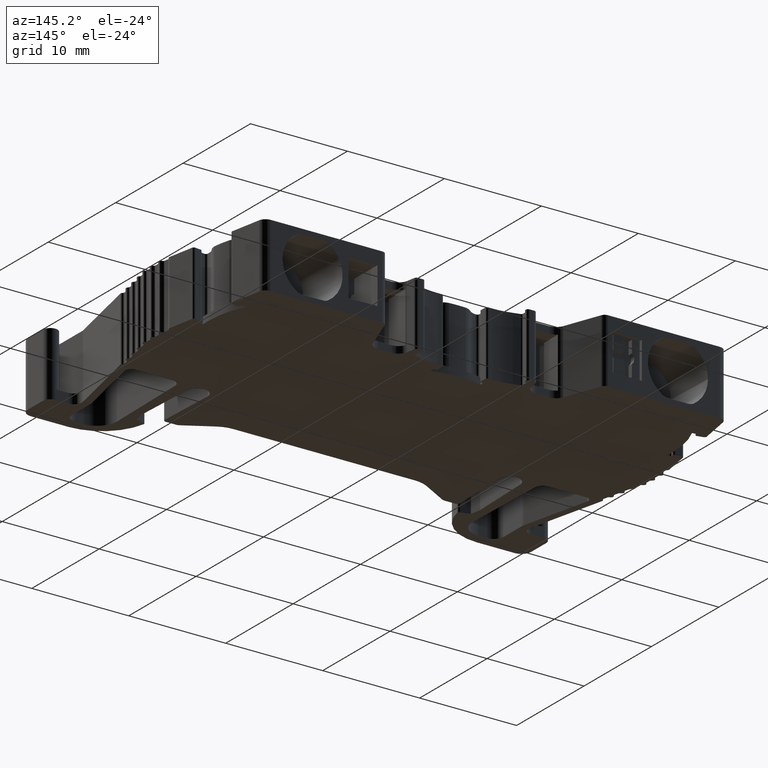
[diagram: clean part render]
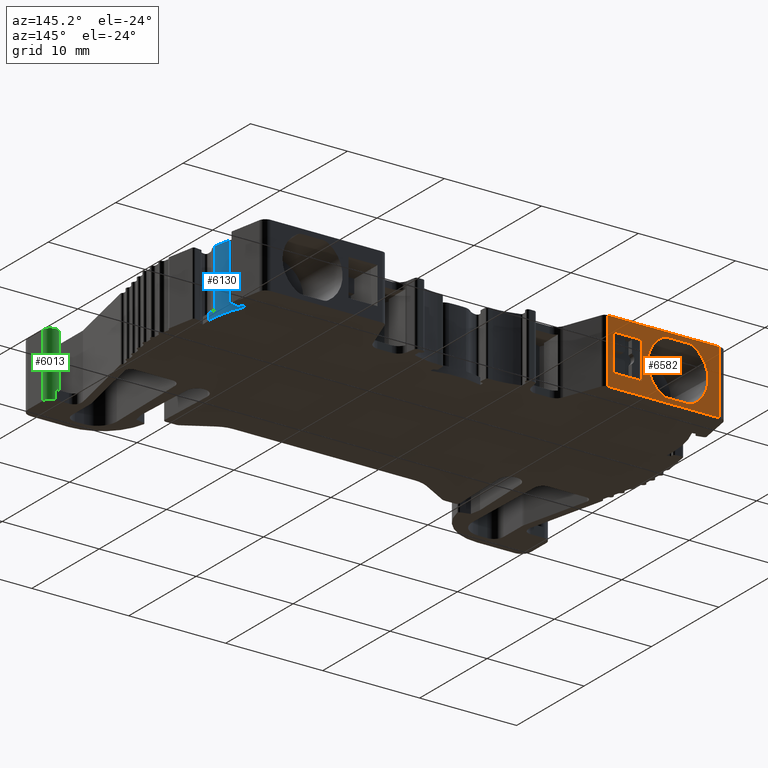
[diagram: same view with three faces highlighted in distinct colors, each labeled with its STEP entity id]
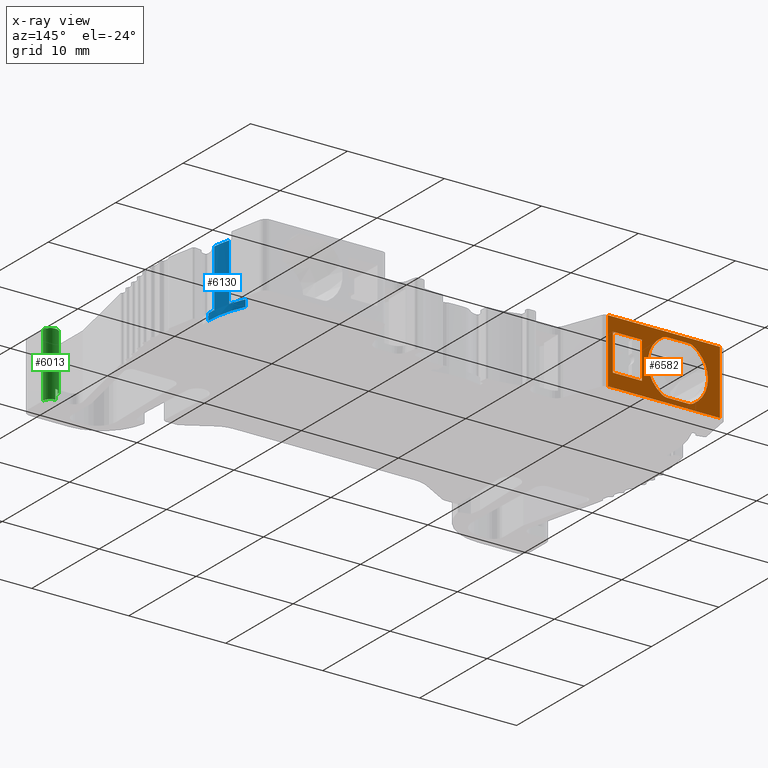
[diagram: x-ray of the same camera — body ghosted, the three highlighted faces saturated]
A machine part, auxiliary view with three faces highlighted in distinct colors.
The next image is the same camera in x-ray (body ghosted, the three faces saturated) — at least one of them is partly hidden behind the body in this view.
Their STEP definitions:

[orange] entity #6582 — the highlighted planar face has unit normal (-0, 1, 0).
#235 = AXIS2_PLACEMENT_3D ( 'NONE', #8721, #8742, #8756 ) ;
#297 = AXIS2_PLACEMENT_3D ( 'NONE', #818, #800, #825 ) ;
#322 = CIRCLE ( 'NONE', #297, 3.101458967779340300 ) ;
#800 = DIRECTION ( 'NONE',  ( 0.0000000000000000000, -1.000000000000000000, 0.0000000000000000000 ) ) ;
#818 = CARTESIAN_POINT ( 'NONE',  ( 1915.531156188674900, 520.6674757026430600, 6.682518055096240200E-015 ) ) ;
#825 = DIRECTION ( 'NONE',  ( 0.0000000000000000000, 0.0000000000000000000, -1.000000000000000000 ) ) ;
#3540 = AXIS2_PLACEMENT_3D ( 'NONE', #12206, #12203, #12193 ) ;
#3541 = VECTOR ( 'NONE', #12190, 1000.000000000000000 ) ;
#3545 = VECTOR ( 'NONE', #11076, 1000.000000000000000 ) ;
#3553 = VECTOR ( 'NONE', #10986, 1000.000000000000000 ) ;
#3554 = VECTOR ( 'NONE', #11033, 1000.000000000000000 ) ;
#3578 = VECTOR ( 'NONE', #11094, 1000.000000000000000 ) ;
#3583 = VECTOR ( 'NONE', #11093, 1000.000000000000000 ) ;
#3586 = CIRCLE ( 'NONE', #3540, 3.101458967779340300 ) ;
#3631 = AXIS2_PLACEMENT_3D ( 'NONE', #11309, #11321, #11332 ) ;
#3643 = CIRCLE ( 'NONE', #3631, 3.101458967779340300 ) ;
#3663 = VECTOR ( 'NONE', #11385, 1000.000000000000000 ) ;
#3685 = VECTOR ( 'NONE', #11381, 1000.000000000000000 ) ;
#3707 = VECTOR ( 'NONE', #11340, 1000.000000000000000 ) ;
#4540 = EDGE_LOOP ( 'NONE', ( #10365, #10346, #10348, #10366, #10328, #10321, #10333, #10341, #10342 ) ) ;
#4609 = EDGE_LOOP ( 'NONE', ( #10343, #10322, #10347, #10334 ) ) ;
#4655 = EDGE_LOOP ( 'NONE', ( #10356, #10316, #10351, #10349 ) ) ;
#4903 = EDGE_CURVE ( 'NONE', #10593, #10605, #12140, .T. ) ;
#4922 = EDGE_CURVE ( 'NONE', #10776, #10556, #3586, .T. ) ;
#4924 = EDGE_CURVE ( 'NONE', #10583, #10575, #12176, .T. ) ;
#4930 = EDGE_CURVE ( 'NONE', #10610, #10563, #10992, .T. ) ;
#4964 = EDGE_CURVE ( 'NONE', #10562, #10605, #11040, .T. ) ;
#4983 = EDGE_CURVE ( 'NONE', #10556, #10595, #9624, .T. ) ;
#4987 = EDGE_CURVE ( 'NONE', #10595, #10571, #11057, .T. ) ;
#4998 = EDGE_CURVE ( 'NONE', #10562, #10555, #11090, .T. ) ;
#5000 = EDGE_CURVE ( 'NONE', #10583, #10610, #11092, .T. ) ;
#5005 = EDGE_CURVE ( 'NONE', #10598, #10792, #9627, .T. ) ;
#5054 = EDGE_CURVE ( 'NONE', #10584, #10625, #9730, .T. ) ;
#5056 = EDGE_CURVE ( 'NONE', #10571, #10606, #9733, .T. ) ;
#5125 = EDGE_CURVE ( 'NONE', #10606, #10584, #3643, .T. ) ;
#5132 = EDGE_CURVE ( 'NONE', #10575, #10563, #11322, .T. ) ;
#5141 = EDGE_CURVE ( 'NONE', #10555, #10593, #11349, .T. ) ;
#5150 = EDGE_CURVE ( 'NONE', #10625, #10598, #11380, .T. ) ;
#6582 = ADVANCED_FACE ( 'NONE', ( #8718, #8729, #8716 ), #8733, .T. ) ;
#6676 = EDGE_CURVE ( 'NONE', #10792, #10776, #322, .T. ) ;
#7779 = CARTESIAN_POINT ( 'NONE',  ( 1922.732209476075000, 520.6674757026415800, -3.299999999999999800 ) ) ;
#7788 = CARTESIAN_POINT ( 'NONE',  ( 1913.929874615439800, 520.6674757026430600, -2.656114653405434700 ) ) ;
#7798 = CARTESIAN_POINT ( 'NONE',  ( 1922.231156188675200, 520.6674757026430600, 1.899999999999999900 ) ) ;
#7801 = CARTESIAN_POINT ( 'NONE',  ( 1922.231156188675200, 520.6674757026430600, -1.899999999999999900 ) ) ;
#7836 = CARTESIAN_POINT ( 'NONE',  ( 1919.247152070025100, 520.6674757026430600, -1.899999999999999900 ) ) ;
#7849 = CARTESIAN_POINT ( 'NONE',  ( 1916.614986978999900, 520.6674757026430600, 2.799999999999999800 ) ) ;
#7854 = CARTESIAN_POINT ( 'NONE',  ( 1911.205100952650100, 520.6674757026435100, 3.299999999999997200 ) ) ;
#7868 = CARTESIAN_POINT ( 'NONE',  ( 1919.247152070025100, 520.6674757026430600, 1.899999999999999900 ) ) ;
#7871 = CARTESIAN_POINT ( 'NONE',  ( 1914.447325398344900, 520.6674757026430600, 2.799999999999999800 ) ) ;
#7878 = CARTESIAN_POINT ( 'NONE',  ( 1917.132437761910100, 520.6674757026430600, -2.656114653405434700 ) ) ;
#7886 = CARTESIAN_POINT ( 'NONE',  ( 1916.614986978999900, 520.6674757026430600, -2.799999999999999800 ) ) ;
#7888 = CARTESIAN_POINT ( 'NONE',  ( 1911.205100952650100, 520.6674757026430600, -3.299999999999999800 ) ) ;
#7891 = CARTESIAN_POINT ( 'NONE',  ( 1922.732209476075000, 520.6674757026430600, 3.299999999999997200 ) ) ;
#7896 = CARTESIAN_POINT ( 'NONE',  ( 1914.447325398344900, 520.6674757026430600, -2.799999999999999800 ) ) ;
#7897 = CARTESIAN_POINT ( 'NONE',  ( 1917.132437761910100, 520.6674757026430600, 2.656114653405444900 ) ) ;
#8076 = CARTESIAN_POINT ( 'NONE',  ( 1913.929874615439800, 520.6674757026430600, 2.656114653405444900 ) ) ;
#8088 = CARTESIAN_POINT ( 'NONE',  ( 1912.429697220895600, 520.6674757026430600, 0.0000000000000000000 ) ) ;
#8387 = VECTOR ( 'NONE', #12142, 1000.000000000000000 ) ;
#8716 = FACE_BOUND ( 'NONE', #4609, .T. ) ;
#8718 = FACE_OUTER_BOUND ( 'NONE', #4655, .T. ) ;
#8721 = CARTESIAN_POINT ( 'NONE',  ( 1922.538986984438900, 520.6674757026430600, 64.80301117275325900 ) ) ;
#8729 = FACE_BOUND ( 'NONE', #4540, .T. ) ;
#8733 = PLANE ( 'NONE',  #235 ) ;
#8742 = DIRECTION ( 'NONE',  ( -0.0000000000000000000, 1.000000000000000000, 0.0000000000000000000 ) ) ;
#8756 = DIRECTION ( 'NONE',  ( 0.0000000000000000000, -0.0000000000000000000, 1.000000000000000000 ) ) ;
#9624 = B_SPLINE_CURVE_WITH_KNOTS ( 'NONE', 3,
 ( #11111, #11085, #11067, #11086 ),
 .UNSPECIFIED., .F., .F.,
 ( 4, 4 ),
 ( 3.903127820947816000E-018, 0.0005399221438289210800 ),
 .UNSPECIFIED. ) ;
#9627 = B_SPLINE_CURVE_WITH_KNOTS ( 'NONE', 3,
 ( #11127, #11165, #11149, #11128 ),
 .UNSPECIFIED., .F., .F.,
 ( 4, 4 ),
 ( 0.0000000000000000000, 0.0005399201660415871000 ),
 .UNSPECIFIED. ) ;
#9730 = B_SPLINE_CURVE_WITH_KNOTS ( 'NONE', 3,
 ( #11181, #11188, #11189, #11202 ),
 .UNSPECIFIED., .F., .F.,
 ( 4, 4 ),
 ( 2.602085213965210600E-018, 0.0005399221438340090200 ),
 .UNSPECIFIED. ) ;
#9733 = B_SPLINE_CURVE_WITH_KNOTS ( 'NONE', 3,
 ( #11195, #11179, #11201, #11194 ),
 .UNSPECIFIED., .F., .F.,
 ( 4, 4 ),
 ( 0.0000000000000000000, 0.0005399201660460113000 ),
 .UNSPECIFIED. ) ;
#10316 = ORIENTED_EDGE ( 'NONE', *, *, #5132, .F. ) ;
#10321 = ORIENTED_EDGE ( 'NONE', *, *, #5125, .T. ) ;
#10322 = ORIENTED_EDGE ( 'NONE', *, *, #4998, .T. ) ;
#10328 = ORIENTED_EDGE ( 'NONE', *, *, #5056, .T. ) ;
#10333 = ORIENTED_EDGE ( 'NONE', *, *, #5054, .T. ) ;
#10334 = ORIENTED_EDGE ( 'NONE', *, *, #4903, .T. ) ;
#10341 = ORIENTED_EDGE ( 'NONE', *, *, #5150, .T. ) ;
#10342 = ORIENTED_EDGE ( 'NONE', *, *, #5005, .T. ) ;
#10343 = ORIENTED_EDGE ( 'NONE', *, *, #4964, .F. ) ;
#10346 = ORIENTED_EDGE ( 'NONE', *, *, #4922, .T. ) ;
#10347 = ORIENTED_EDGE ( 'NONE', *, *, #5141, .T. ) ;
#10348 = ORIENTED_EDGE ( 'NONE', *, *, #4983, .T. ) ;
#10349 = ORIENTED_EDGE ( 'NONE', *, *, #5000, .T. ) ;
#10351 = ORIENTED_EDGE ( 'NONE', *, *, #4924, .F. ) ;
#10356 = ORIENTED_EDGE ( 'NONE', *, *, #4930, .T. ) ;
#10365 = ORIENTED_EDGE ( 'NONE', *, *, #6676, .T. ) ;
#10366 = ORIENTED_EDGE ( 'NONE', *, *, #4987, .T. ) ;
#10555 = VERTEX_POINT ( 'NONE', #7798 ) ;
#10556 = VERTEX_POINT ( 'NONE', #7788 ) ;
#10562 = VERTEX_POINT ( 'NONE', #7801 ) ;
#10563 = VERTEX_POINT ( 'NONE', #7779 ) ;
#10571 = VERTEX_POINT ( 'NONE', #7886 ) ;
#10575 = VERTEX_POINT ( 'NONE', #7888 ) ;
#10583 = VERTEX_POINT ( 'NONE', #7854 ) ;
#10584 = VERTEX_POINT ( 'NONE', #7897 ) ;
#10593 = VERTEX_POINT ( 'NONE', #7868 ) ;
#10595 = VERTEX_POINT ( 'NONE', #7896 ) ;
#10598 = VERTEX_POINT ( 'NONE', #7871 ) ;
#10605 = VERTEX_POINT ( 'NONE', #7836 ) ;
#10606 = VERTEX_POINT ( 'NONE', #7878 ) ;
#10610 = VERTEX_POINT ( 'NONE', #7891 ) ;
#10625 = VERTEX_POINT ( 'NONE', #7849 ) ;
#10776 = VERTEX_POINT ( 'NONE', #8088 ) ;
#10792 = VERTEX_POINT ( 'NONE', #8076 ) ;
#10986 = DIRECTION ( 'NONE',  ( 0.0000000000000000000, 0.0000000000000000000, -1.000000000000000000 ) ) ;
#10992 = LINE ( 'NONE', #10998, #3553 ) ;
#10998 = CARTESIAN_POINT ( 'NONE',  ( 1922.732209476075000, 520.6674757026415800, 64.80301117275325900 ) ) ;
#11033 = DIRECTION ( 'NONE',  ( -1.000000000000000000, 0.0000000000000000000, 0.0000000000000000000 ) ) ;
#11040 = LINE ( 'NONE', #11048, #3554 ) ;
#11048 = CARTESIAN_POINT ( 'NONE',  ( 0.0000000000000000000, 520.6674757026430600, -1.899999999999999900 ) ) ;
#11057 = LINE ( 'NONE', #11070, #3545 ) ;
#11067 = CARTESIAN_POINT ( 'NONE',  ( 1914.264761404241900, 520.6674757026430600, -2.799999999999270200 ) ) ;
#11070 = CARTESIAN_POINT ( 'NONE',  ( 1912.119859992965100, 520.6674757026430600, -2.799999999999999800 ) ) ;
#11071 = CARTESIAN_POINT ( 'NONE',  ( 1922.231156188675200, 520.6674757026430600, 3.299999999999999800 ) ) ;
#11076 = DIRECTION ( 'NONE',  ( 1.000000000000000000, 0.0000000000000000000, 0.0000000000000000000 ) ) ;
#11085 = CARTESIAN_POINT ( 'NONE',  ( 1914.086225310100200, 520.6674757026430600, -2.750373192283196700 ) ) ;
#11086 = CARTESIAN_POINT ( 'NONE',  ( 1914.447325398344900, 520.6674757026430600, -2.799999999999999800 ) ) ;
#11090 = LINE ( 'NONE', #11071, #3578 ) ;
#11092 = LINE ( 'NONE', #11109, #3583 ) ;
#11093 = DIRECTION ( 'NONE',  ( 1.000000000000000000, 0.0000000000000000000, 0.0000000000000000000 ) ) ;
#11094 = DIRECTION ( 'NONE',  ( 0.0000000000000000000, 0.0000000000000000000, 1.000000000000000000 ) ) ;
#11109 = CARTESIAN_POINT ( 'NONE',  ( 1922.538986984438900, 520.6674757026430600, 3.299999999999997200 ) ) ;
#11111 = CARTESIAN_POINT ( 'NONE',  ( 1913.929874615439800, 520.6674757026430600, -2.656114653405434700 ) ) ;
#11127 = CARTESIAN_POINT ( 'NONE',  ( 1914.447325398344900, 520.6674757026430600, 2.799999999999999800 ) ) ;
#11128 = CARTESIAN_POINT ( 'NONE',  ( 1913.929874615439800, 520.6674757026430600, 2.656114653405444900 ) ) ;
#11149 = CARTESIAN_POINT ( 'NONE',  ( 1914.086225332716400, 520.6674757026430600, 2.750373205917803000 ) ) ;
#11165 = CARTESIAN_POINT ( 'NONE',  ( 1914.264760880576200, 520.6674757026430600, 2.799999999999270200 ) ) ;
#11179 = CARTESIAN_POINT ( 'NONE',  ( 1916.797551496770200, 520.6674757026430600, -2.800000000000202300 ) ) ;
#11181 = CARTESIAN_POINT ( 'NONE',  ( 1917.132437761910100, 520.6674757026430600, 2.656114653405444900 ) ) ;
#11188 = CARTESIAN_POINT ( 'NONE',  ( 1916.976087067248500, 520.6674757026430600, 2.750373192284084800 ) ) ;
#11189 = CARTESIAN_POINT ( 'NONE',  ( 1916.797550973104500, 520.6674757026430600, 2.800000000000202300 ) ) ;
#11194 = CARTESIAN_POINT ( 'NONE',  ( 1917.132437761910100, 520.6674757026430600, -2.656114653405434700 ) ) ;
#11195 = CARTESIAN_POINT ( 'NONE',  ( 1916.614986978999900, 520.6674757026430600, -2.799999999999999800 ) ) ;
#11201 = CARTESIAN_POINT ( 'NONE',  ( 1916.976087044632100, 520.6674757026430600, -2.750373205918671200 ) ) ;
#11202 = CARTESIAN_POINT ( 'NONE',  ( 1916.614986978999900, 520.6674757026430600, 2.799999999999999800 ) ) ;
#11309 = CARTESIAN_POINT ( 'NONE',  ( 1915.531156188674900, 520.6674757026430600, 6.682518055096240200E-015 ) ) ;
#11315 = CARTESIAN_POINT ( 'NONE',  ( 0.0000000000000000000, 520.6674757026430600, 1.899999999999999900 ) ) ;
#11321 = DIRECTION ( 'NONE',  ( 0.0000000000000000000, -1.000000000000000000, 0.0000000000000000000 ) ) ;
#11322 = LINE ( 'NONE', #11343, #3707 ) ;
#11332 = DIRECTION ( 'NONE',  ( 0.0000000000000000000, 0.0000000000000000000, -1.000000000000000000 ) ) ;
#11340 = DIRECTION ( 'NONE',  ( 1.000000000000000000, 0.0000000000000000000, 0.0000000000000000000 ) ) ;
#11343 = CARTESIAN_POINT ( 'NONE',  ( 1911.205100952650100, 520.6674757026430600, -3.299999999999999800 ) ) ;
#11349 = LINE ( 'NONE', #11315, #3685 ) ;
#11380 = LINE ( 'NONE', #11384, #3663 ) ;
#11381 = DIRECTION ( 'NONE',  ( -1.000000000000000000, 0.0000000000000000000, 0.0000000000000000000 ) ) ;
#11384 = CARTESIAN_POINT ( 'NONE',  ( 1912.616527072074900, 520.6674757026430600, 2.799999999999999800 ) ) ;
#11385 = DIRECTION ( 'NONE',  ( -1.000000000000000000, 0.0000000000000000000, 0.0000000000000000000 ) ) ;
#12140 = LINE ( 'NONE', #12148, #8387 ) ;
#12142 = DIRECTION ( 'NONE',  ( 0.0000000000000000000, 0.0000000000000000000, -1.000000000000000000 ) ) ;
#12148 = CARTESIAN_POINT ( 'NONE',  ( 1919.247152070025100, 520.6674757026430600, 3.299999999999999800 ) ) ;
#12176 = LINE ( 'NONE', #12185, #3541 ) ;
#12185 = CARTESIAN_POINT ( 'NONE',  ( 1911.205100952650100, 520.6674757026430600, 64.80301117275325900 ) ) ;
#12190 = DIRECTION ( 'NONE',  ( 0.0000000000000000000, 0.0000000000000000000, -1.000000000000000000 ) ) ;
#12193 = DIRECTION ( 'NONE',  ( 0.0000000000000000000, 0.0000000000000000000, -1.000000000000000000 ) ) ;
#12203 = DIRECTION ( 'NONE',  ( 0.0000000000000000000, -1.000000000000000000, 0.0000000000000000000 ) ) ;
#12206 = CARTESIAN_POINT ( 'NONE',  ( 1915.531156188674900, 520.6674757026430600, 6.682518055096240200E-015 ) ) ;

[blue] entity #6130 — the highlighted cylindrical surface (partial cylindrical patch) has radius 9.8522 mm, axis along (0, 0, -1).
#1116 = CARTESIAN_POINT ( 'NONE',  ( 1957.384889840130000, 516.7524925495449700, -2.600000000000000100 ) ) ;
#1568 = LINE ( 'NONE', #1579, #2826 ) ;
#1570 = CARTESIAN_POINT ( 'NONE',  ( 1948.463370884240000, 512.5724597285650400, -2.600000000000000100 ) ) ;
#1579 = CARTESIAN_POINT ( 'NONE',  ( 1958.315587633008400, 512.5724597285650400, 3.299999999999999800 ) ) ;
#1592 = DIRECTION ( 'NONE',  ( 1.000000000000000000, 0.0000000000000000000, 0.0000000000000000000 ) ) ;
#1605 = DIRECTION ( 'NONE',  ( 0.0000000000000000000, 0.0000000000000000000, 1.000000000000000000 ) ) ;
#1612 = DIRECTION ( 'NONE',  ( 0.0000000000000000000, 0.0000000000000000000, -1.000000000000000000 ) ) ;
#1685 = LINE ( 'NONE', #1116, #2800 ) ;
#2246 = CARTESIAN_POINT ( 'NONE',  ( 1948.463370884240000, 512.5724597285650400, 3.299999999999999800 ) ) ;
#2262 = FACE_OUTER_BOUND ( 'NONE', #4487, .T. ) ;
#2270 = DIRECTION ( 'NONE',  ( 1.000000000000000000, 0.0000000000000000000, 0.0000000000000000000 ) ) ;
#2279 = CYLINDRICAL_SURFACE ( 'NONE', #6522, 9.852216748768238800 ) ;
#2284 = DIRECTION ( 'NONE',  ( 0.0000000000000000000, 0.0000000000000000000, -1.000000000000000000 ) ) ;
#2583 = DIRECTION ( 'NONE',  ( -0.0000000000000000000, -0.0000000000000000000, 1.000000000000000000 ) ) ;
#2785 = AXIS2_PLACEMENT_3D ( 'NONE', #1570, #1605, #1592 ) ;
#2800 = VECTOR ( 'NONE', #2583, 1000.000000000000000 ) ;
#2817 = CIRCLE ( 'NONE', #2785, 9.852216748768238800 ) ;
#2826 = VECTOR ( 'NONE', #1612, 1000.000000000000000 ) ;
#2851 = CIRCLE ( 'NONE', #2853, 9.852216748768238800 ) ;
#2852 = CIRCLE ( 'NONE', #2894, 9.852216748768238800 ) ;
#2853 = AXIS2_PLACEMENT_3D ( 'NONE', #7476, #7508, #7478 ) ;
#2869 = VECTOR ( 'NONE', #7489, 1000.000000000000000 ) ;
#2878 = VECTOR ( 'NONE', #7472, 1000.000000000000000 ) ;
#2892 = AXIS2_PLACEMENT_3D ( 'NONE', #7502, #7488, #7473 ) ;
#2894 = AXIS2_PLACEMENT_3D ( 'NONE', #7484, #7486, #7540 ) ;
#2895 = CIRCLE ( 'NONE', #2892, 9.852216748768238800 ) ;
#4487 = EDGE_LOOP ( 'NONE', ( #9927, #9870, #9826, #9873, #9930, #9868, #9907, #9885 ) ) ;
#6130 = ADVANCED_FACE ( 'NONE', ( #2262 ), #2279, .T. ) ;
#6522 = AXIS2_PLACEMENT_3D ( 'NONE', #2246, #2284, #2270 ) ;
#6898 = EDGE_CURVE ( 'NONE', #10791, #10797, #1568, .T. ) ;
#6904 = EDGE_CURVE ( 'NONE', #10791, #10780, #2817, .T. ) ;
#6932 = EDGE_CURVE ( 'NONE', #10808, #10698, #1685, .T. ) ;
#6936 = EDGE_CURVE ( 'NONE', #10803, #10756, #7467, .T. ) ;
#6938 = EDGE_CURVE ( 'NONE', #10779, #10780, #7494, .T. ) ;
#6939 = EDGE_CURVE ( 'NONE', #10803, #10779, #2895, .T. ) ;
#6943 = EDGE_CURVE ( 'NONE', #10756, #10698, #2851, .T. ) ;
#6944 = EDGE_CURVE ( 'NONE', #10808, #10797, #2852, .T. ) ;
#7467 = LINE ( 'NONE', #7470, #2878 ) ;
#7470 = CARTESIAN_POINT ( 'NONE',  ( 1957.975590342619900, 515.1383622676929700, 3.299999999999999800 ) ) ;
#7472 = DIRECTION ( 'NONE',  ( 0.0000000000000000000, 0.0000000000000000000, -1.000000000000000000 ) ) ;
#7473 = DIRECTION ( 'NONE',  ( -1.000000000000000000, 0.0000000000000000000, 0.0000000000000000000 ) ) ;
#7476 = CARTESIAN_POINT ( 'NONE',  ( 1948.463370884240000, 512.5724597285650400, -2.600000000000000100 ) ) ;
#7478 = DIRECTION ( 'NONE',  ( 1.000000000000000000, 0.0000000000000000000, 0.0000000000000000000 ) ) ;
#7484 = CARTESIAN_POINT ( 'NONE',  ( 1948.463370884240000, 512.5724597285650400, -3.299999999999999800 ) ) ;
#7486 = DIRECTION ( 'NONE',  ( 0.0000000000000000000, 0.0000000000000000000, -1.000000000000000000 ) ) ;
#7488 = DIRECTION ( 'NONE',  ( 0.0000000000000000000, 0.0000000000000000000, -1.000000000000000000 ) ) ;
#7489 = DIRECTION ( 'NONE',  ( 0.0000000000000000000, 0.0000000000000000000, -1.000000000000000000 ) ) ;
#7494 = LINE ( 'NONE', #7497, #2869 ) ;
#7497 = CARTESIAN_POINT ( 'NONE',  ( 1958.279523670775000, 513.4146707093599400, 3.299999999999999800 ) ) ;
#7502 = CARTESIAN_POINT ( 'NONE',  ( 1948.463370884240000, 512.5724597285650400, 3.299999999999999800 ) ) ;
#7508 = DIRECTION ( 'NONE',  ( 0.0000000000000000000, 0.0000000000000000000, 1.000000000000000000 ) ) ;
#7540 = DIRECTION ( 'NONE',  ( -1.000000000000000000, 0.0000000000000000000, 0.0000000000000000000 ) ) ;
#7999 = CARTESIAN_POINT ( 'NONE',  ( 1957.384889840130000, 516.7524925495449700, -2.600000000000000100 ) ) ;
#8005 = CARTESIAN_POINT ( 'NONE',  ( 1957.975590342619900, 515.1383622676929700, -2.600000000000000100 ) ) ;
#8038 = CARTESIAN_POINT ( 'NONE',  ( 1958.279523670775000, 513.4146707093599400, 3.299999999999999800 ) ) ;
#8051 = CARTESIAN_POINT ( 'NONE',  ( 1957.975590342619900, 515.1383622676929700, 3.299999999999999800 ) ) ;
#8055 = CARTESIAN_POINT ( 'NONE',  ( 1958.315587633008400, 512.5724597285650400, -3.299999999999999800 ) ) ;
#8058 = CARTESIAN_POINT ( 'NONE',  ( 1957.384889840130000, 516.7524925495449700, -3.299999999999999800 ) ) ;
#8077 = CARTESIAN_POINT ( 'NONE',  ( 1958.315587633008400, 512.5724597285650400, -2.600000000000000100 ) ) ;
#8085 = CARTESIAN_POINT ( 'NONE',  ( 1958.279523670775000, 513.4146707093599400, -2.600000000000000100 ) ) ;
#9826 = ORIENTED_EDGE ( 'NONE', *, *, #6944, .F. ) ;
#9868 = ORIENTED_EDGE ( 'NONE', *, *, #6936, .F. ) ;
#9870 = ORIENTED_EDGE ( 'NONE', *, *, #6898, .T. ) ;
#9873 = ORIENTED_EDGE ( 'NONE', *, *, #6932, .T. ) ;
#9885 = ORIENTED_EDGE ( 'NONE', *, *, #6938, .T. ) ;
#9907 = ORIENTED_EDGE ( 'NONE', *, *, #6939, .T. ) ;
#9927 = ORIENTED_EDGE ( 'NONE', *, *, #6904, .F. ) ;
#9930 = ORIENTED_EDGE ( 'NONE', *, *, #6943, .F. ) ;
#10698 = VERTEX_POINT ( 'NONE', #7999 ) ;
#10756 = VERTEX_POINT ( 'NONE', #8005 ) ;
#10779 = VERTEX_POINT ( 'NONE', #8038 ) ;
#10780 = VERTEX_POINT ( 'NONE', #8085 ) ;
#10791 = VERTEX_POINT ( 'NONE', #8077 ) ;
#10797 = VERTEX_POINT ( 'NONE', #8055 ) ;
#10803 = VERTEX_POINT ( 'NONE', #8051 ) ;
#10808 = VERTEX_POINT ( 'NONE', #8058 ) ;

[green] entity #6013 — the highlighted cylindrical surface (edge-blend (fillet) strip) has radius 0.75 mm, axis along (0, 0, -1).
#63 = CIRCLE ( 'NONE', #126, 0.7500002651534831700 ) ;
#126 = AXIS2_PLACEMENT_3D ( 'NONE', #1495, #1489, #1493 ) ;
#429 = VECTOR ( 'NONE', #1146, 1000.000000000000000 ) ;
#580 = CIRCLE ( 'NONE', #584, 0.7500002651534831700 ) ;
#582 = CIRCLE ( 'NONE', #585, 0.7500002651525949900 ) ;
#584 = AXIS2_PLACEMENT_3D ( 'NONE', #1518, #1502, #1478 ) ;
#585 = AXIS2_PLACEMENT_3D ( 'NONE', #1438, #1440, #1455 ) ;
#1124 = CARTESIAN_POINT ( 'NONE',  ( 1958.819964612491500, 490.9134970193829900, 64.80301117275325900 ) ) ;
#1141 = LINE ( 'NONE', #1124, #429 ) ;
#1146 = DIRECTION ( 'NONE',  ( 0.0000000000000000000, 0.0000000000000000000, -1.000000000000000000 ) ) ;
#1438 = CARTESIAN_POINT ( 'NONE',  ( 1959.569964877644900, 490.9134970193829900, -2.299999999999999800 ) ) ;
#1440 = DIRECTION ( 'NONE',  ( 0.0000000000000000000, 0.0000000000000000000, 1.000000000000000000 ) ) ;
#1455 = DIRECTION ( 'NONE',  ( 1.000000000000000000, 0.0000000000000000000, 0.0000000000000000000 ) ) ;
#1478 = DIRECTION ( 'NONE',  ( 1.000000000000000000, 0.0000000000000000000, 0.0000000000000000000 ) ) ;
#1489 = DIRECTION ( 'NONE',  ( 0.0000000000000000000, 0.0000000000000000000, -1.000000000000000000 ) ) ;
#1493 = DIRECTION ( 'NONE',  ( -1.000000000000000000, 0.0000000000000000000, 0.0000000000000000000 ) ) ;
#1495 = CARTESIAN_POINT ( 'NONE',  ( 1959.569964877644900, 490.9134970193829900, -3.299999999999999800 ) ) ;
#1502 = DIRECTION ( 'NONE',  ( -0.0000000000000000000, -0.0000000000000000000, -1.000000000000000000 ) ) ;
#1518 = CARTESIAN_POINT ( 'NONE',  ( 1959.569964877644900, 490.9134970193829900, 3.299999999999997200 ) ) ;
#1528 = CARTESIAN_POINT ( 'NONE',  ( 1959.569964877644900, 491.6634972845350300, -8.127378647896790700 ) ) ;
#1554 = LINE ( 'NONE', #1528, #2804 ) ;
#1562 = DIRECTION ( 'NONE',  ( 0.0000000000000000000, 0.0000000000000000000, 1.000000000000000000 ) ) ;
#1618 = CARTESIAN_POINT ( 'NONE',  ( 1960.319965142790100, 490.9135004819129900, 64.80301117275325900 ) ) ;
#1624 = LINE ( 'NONE', #1618, #2787 ) ;
#1637 = DIRECTION ( 'NONE',  ( 0.0000000000000000000, 0.0000000000000000000, -1.000000000000000000 ) ) ;
#1849 = DIRECTION ( 'NONE',  ( -1.000000000000000000, 0.0000000000000000000, 0.0000000000000000000 ) ) ;
#1856 = CYLINDRICAL_SURFACE ( 'NONE', #12516, 0.7500002651534831700 ) ;
#1878 = FACE_OUTER_BOUND ( 'NONE', #4546, .T. ) ;
#1883 = CARTESIAN_POINT ( 'NONE',  ( 1959.569964877644900, 490.9134970193829900, 64.80301117275325900 ) ) ;
#1886 = DIRECTION ( 'NONE',  ( 0.0000000000000000000, 0.0000000000000000000, -1.000000000000000000 ) ) ;
#2787 = VECTOR ( 'NONE', #1637, 1000.000000000000000 ) ;
#2804 = VECTOR ( 'NONE', #1562, 1000.000000000000000 ) ;
#4546 = EDGE_LOOP ( 'NONE', ( #10309, #10295, #10282, #10306, #10285, #10276 ) ) ;
#6013 = ADVANCED_FACE ( 'NONE', ( #1878 ), #1856, .T. ) ;
#6766 = EDGE_CURVE ( 'NONE', #10852, #10856, #1141, .T. ) ;
#6862 = EDGE_CURVE ( 'NONE', #10558, #10856, #582, .T. ) ;
#6864 = EDGE_CURVE ( 'NONE', #10852, #10544, #580, .T. ) ;
#6865 = EDGE_CURVE ( 'NONE', #10534, #10519, #63, .T. ) ;
#6885 = EDGE_CURVE ( 'NONE', #10534, #10558, #1554, .T. ) ;
#6910 = EDGE_CURVE ( 'NONE', #10544, #10519, #1624, .T. ) ;
#7784 = CARTESIAN_POINT ( 'NONE',  ( 1959.569964877644900, 491.6634972845350300, -3.299999999999999800 ) ) ;
#7787 = CARTESIAN_POINT ( 'NONE',  ( 1960.319965142798500, 490.9134970193829900, 3.299999999999997200 ) ) ;
#7810 = CARTESIAN_POINT ( 'NONE',  ( 1960.319965142790100, 490.9135004819129900, -3.299999999999999800 ) ) ;
#7827 = CARTESIAN_POINT ( 'NONE',  ( 1959.569964877644900, 491.6634972845350300, -2.299999999999999800 ) ) ;
#8151 = CARTESIAN_POINT ( 'NONE',  ( 1958.819964612491500, 490.9134970193829900, 3.299999999999997200 ) ) ;
#8153 = CARTESIAN_POINT ( 'NONE',  ( 1958.819964612492400, 490.9134970193829900, -2.299999999999999800 ) ) ;
#10276 = ORIENTED_EDGE ( 'NONE', *, *, #6862, .T. ) ;
#10282 = ORIENTED_EDGE ( 'NONE', *, *, #6910, .T. ) ;
#10285 = ORIENTED_EDGE ( 'NONE', *, *, #6885, .T. ) ;
#10295 = ORIENTED_EDGE ( 'NONE', *, *, #6864, .T. ) ;
#10306 = ORIENTED_EDGE ( 'NONE', *, *, #6865, .F. ) ;
#10309 = ORIENTED_EDGE ( 'NONE', *, *, #6766, .F. ) ;
#10519 = VERTEX_POINT ( 'NONE', #7810 ) ;
#10534 = VERTEX_POINT ( 'NONE', #7784 ) ;
#10544 = VERTEX_POINT ( 'NONE', #7787 ) ;
#10558 = VERTEX_POINT ( 'NONE', #7827 ) ;
#10852 = VERTEX_POINT ( 'NONE', #8151 ) ;
#10856 = VERTEX_POINT ( 'NONE', #8153 ) ;
#12516 = AXIS2_PLACEMENT_3D ( 'NONE', #1883, #1886, #1849 ) ;